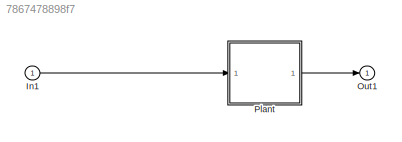
MODEL slx_7867478898f7
KIND model
CONFIG AbsTol = auto
CONFIG EnableMultiTasking = on
CONFIG FixedStep = auto
CONFIG MaxStep = 0.1
CONFIG MinStep = auto
CONFIG RelTol = 1e-3
CONFIG SampleTimeConstraint = Unconstrained
CONFIG Solver = FixedStepAuto
CONFIG SolverName = FixedStepAuto
CONFIG StartTime = 0.0
CONFIG StopTime = simstop
BLOCK [Inport] In1
  IconDisplay = Port number
BLOCK [Outport] Out1
  IconDisplay = Port number
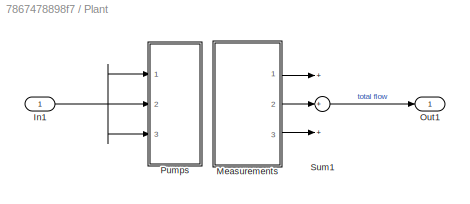
BLOCK [SubSystem] Plant
  Ports = [1, 1]
  RequestExecContextInheritance = off
  Variant = off
BLOCK [Inport] Plant/In1
  IconDisplay = Port number
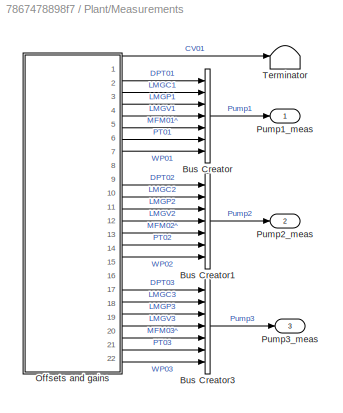
BLOCK [SubSystem] Plant/Measurements
  Ports = [0, 3]
  RequestExecContextInheritance = off
  Variant = off
BLOCK [BusCreator] Plant/Measurements/Bus Creator
  DisplayOption = bar
  InheritFromInputs = on
  Inputs = 7
  Ports = [7, 1]
BLOCK [BusCreator] Plant/Measurements/Bus Creator1
  DisplayOption = bar
  InheritFromInputs = on
  Inputs = 7
  Ports = [7, 1]
BLOCK [BusCreator] Plant/Measurements/Bus Creator3
  DisplayOption = bar
  InheritFromInputs = on
  Inputs = 7
  Ports = [7, 1]
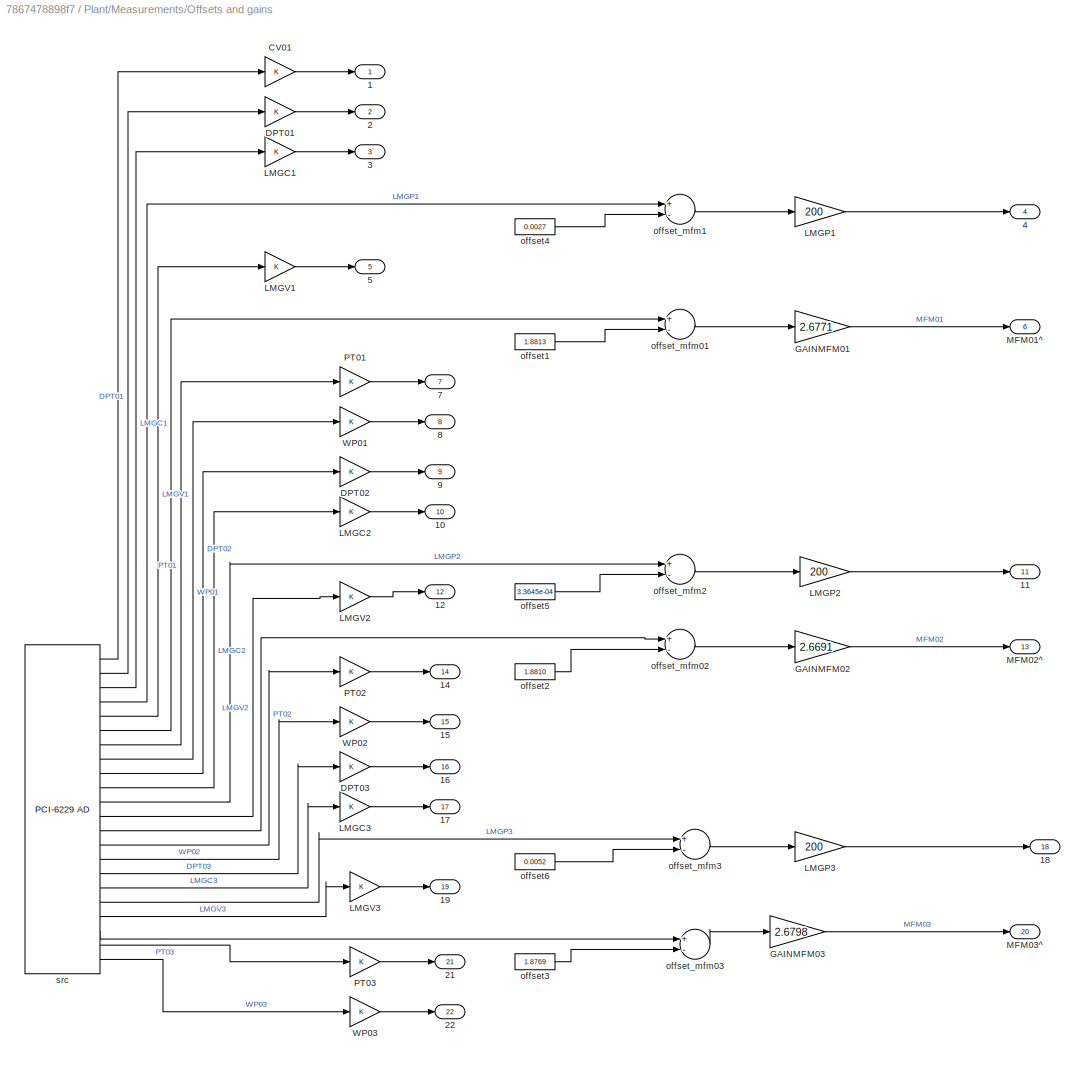
BLOCK [SubSystem] Plant/Measurements/Offsets and gains
  Ports = [0, 22]
  RequestExecContextInheritance = off
  Variant = off
BLOCK [Outport] Plant/Measurements/Offsets and gains/1
  IconDisplay = Port number
BLOCK [Outport] Plant/Measurements/Offsets and gains/10
  IconDisplay = Port number
  Port = 10
BLOCK [Outport] Plant/Measurements/Offsets and gains/11
  IconDisplay = Port number
  Port = 11
BLOCK [Outport] Plant/Measurements/Offsets and gains/12
  IconDisplay = Port number
  Port = 12
BLOCK [Outport] Plant/Measurements/Offsets and gains/14
  IconDisplay = Port number
  Port = 14
BLOCK [Outport] Plant/Measurements/Offsets and gains/15
  IconDisplay = Port number
  Port = 15
BLOCK [Outport] Plant/Measurements/Offsets and gains/16
  IconDisplay = Port number
  Port = 16
BLOCK [Outport] Plant/Measurements/Offsets and gains/17
  IconDisplay = Port number
  Port = 17
BLOCK [Outport] Plant/Measurements/Offsets and gains/18
  IconDisplay = Port number
  Port = 18
BLOCK [Outport] Plant/Measurements/Offsets and gains/19
  IconDisplay = Port number
  Port = 19
BLOCK [Outport] Plant/Measurements/Offsets and gains/2
  IconDisplay = Port number
  Port = 2
BLOCK [Outport] Plant/Measurements/Offsets and gains/21
  IconDisplay = Port number
  Port = 21
BLOCK [Outport] Plant/Measurements/Offsets and gains/22
  IconDisplay = Port number
  Port = 22
BLOCK [Outport] Plant/Measurements/Offsets and gains/3
  IconDisplay = Port number
  Port = 3
BLOCK [Outport] Plant/Measurements/Offsets and gains/4
  IconDisplay = Port number
  Port = 4
BLOCK [Outport] Plant/Measurements/Offsets and gains/5
  IconDisplay = Port number
  Port = 5
BLOCK [Outport] Plant/Measurements/Offsets and gains/7
  IconDisplay = Port number
  Port = 7
BLOCK [Outport] Plant/Measurements/Offsets and gains/8
  IconDisplay = Port number
  Port = 8
BLOCK [Outport] Plant/Measurements/Offsets and gains/9
  IconDisplay = Port number
  Port = 9
BLOCK [Gain] Plant/Measurements/Offsets and gains/CV01
  OutDataTypeStr = Inherit: Inherit via internal rule
  ParamDataTypeStr = Inherit: Inherit via internal rule
  SaturateOnIntegerOverflow = off
BLOCK [Gain] Plant/Measurements/Offsets and gains/DPT01
  OutDataTypeStr = Inherit: Inherit via internal rule
  ParamDataTypeStr = Inherit: Inherit via internal rule
  SaturateOnIntegerOverflow = off
BLOCK [Gain] Plant/Measurements/Offsets and gains/DPT02
  OutDataTypeStr = Inherit: Inherit via internal rule
  ParamDataTypeStr = Inherit: Inherit via internal rule
  SaturateOnIntegerOverflow = off
BLOCK [Gain] Plant/Measurements/Offsets and gains/DPT03
  OutDataTypeStr = Inherit: Inherit via internal rule
  ParamDataTypeStr = Inherit: Inherit via internal rule
  SaturateOnIntegerOverflow = off
BLOCK [Gain] Plant/Measurements/Offsets and gains/GAINMFM01
  Gain = 2.6771
  OutDataTypeStr = Inherit: Inherit via internal rule
  ParamDataTypeStr = Inherit: Inherit via internal rule
  SaturateOnIntegerOverflow = off
BLOCK [Gain] Plant/Measurements/Offsets and gains/GAINMFM02
  Gain = 2.6691
  OutDataTypeStr = Inherit: Inherit via internal rule
  ParamDataTypeStr = Inherit: Inherit via internal rule
  SaturateOnIntegerOverflow = off
BLOCK [Gain] Plant/Measurements/Offsets and gains/GAINMFM03
  Gain = 2.6798
  OutDataTypeStr = Inherit: Inherit via internal rule
  ParamDataTypeStr = Inherit: Inherit via internal rule
  SaturateOnIntegerOverflow = off
BLOCK [Gain] Plant/Measurements/Offsets and gains/LMGC1
  OutDataTypeStr = Inherit: Inherit via internal rule
  ParamDataTypeStr = Inherit: Inherit via internal rule
  SaturateOnIntegerOverflow = off
BLOCK [Gain] Plant/Measurements/Offsets and gains/LMGC2
  OutDataTypeStr = Inherit: Inherit via internal rule
  ParamDataTypeStr = Inherit: Inherit via internal rule
  SaturateOnIntegerOverflow = off
BLOCK [Gain] Plant/Measurements/Offsets and gains/LMGC3
  OutDataTypeStr = Inherit: Inherit via internal rule
  ParamDataTypeStr = Inherit: Inherit via internal rule
  SaturateOnIntegerOverflow = off
BLOCK [Gain] Plant/Measurements/Offsets and gains/LMGP1
  Gain = 200
  OutDataTypeStr = Inherit: Inherit via internal rule
  ParamDataTypeStr = Inherit: Inherit via internal rule
  SaturateOnIntegerOverflow = off
BLOCK [Gain] Plant/Measurements/Offsets and gains/LMGP2
  Gain = 200
  OutDataTypeStr = Inherit: Inherit via internal rule
  ParamDataTypeStr = Inherit: Inherit via internal rule
  SaturateOnIntegerOverflow = off
BLOCK [Gain] Plant/Measurements/Offsets and gains/LMGP3
  Gain = 200
  OutDataTypeStr = Inherit: Inherit via internal rule
  ParamDataTypeStr = Inherit: Inherit via internal rule
  SaturateOnIntegerOverflow = off
BLOCK [Gain] Plant/Measurements/Offsets and gains/LMGV1
  OutDataTypeStr = Inherit: Inherit via internal rule
  ParamDataTypeStr = Inherit: Inherit via internal rule
  SaturateOnIntegerOverflow = off
BLOCK [Gain] Plant/Measurements/Offsets and gains/LMGV2
  OutDataTypeStr = Inherit: Inherit via internal rule
  ParamDataTypeStr = Inherit: Inherit via internal rule
  SaturateOnIntegerOverflow = off
BLOCK [Gain] Plant/Measurements/Offsets and gains/LMGV3
  OutDataTypeStr = Inherit: Inherit via internal rule
  ParamDataTypeStr = Inherit: Inherit via internal rule
  SaturateOnIntegerOverflow = off
BLOCK [Outport] Plant/Measurements/Offsets and gains/MFM01^
  IconDisplay = Port number
  Port = 6
BLOCK [Outport] Plant/Measurements/Offsets and gains/MFM02^
  IconDisplay = Port number
  Port = 13
BLOCK [Outport] Plant/Measurements/Offsets and gains/MFM03^
  IconDisplay = Port number
  Port = 20
BLOCK [Gain] Plant/Measurements/Offsets and gains/PT01
  OutDataTypeStr = Inherit: Inherit via internal rule
  ParamDataTypeStr = Inherit: Inherit via internal rule
  SaturateOnIntegerOverflow = off
BLOCK [Gain] Plant/Measurements/Offsets and gains/PT02
  OutDataTypeStr = Inherit: Inherit via internal rule
  ParamDataTypeStr = Inherit: Inherit via internal rule
  SaturateOnIntegerOverflow = off
BLOCK [Gain] Plant/Measurements/Offsets and gains/PT03
  OutDataTypeStr = Inherit: Inherit via internal rule
  ParamDataTypeStr = Inherit: Inherit via internal rule
  SaturateOnIntegerOverflow = off
BLOCK [Gain] Plant/Measurements/Offsets and gains/WP01
  OutDataTypeStr = Inherit: Inherit via internal rule
  ParamDataTypeStr = Inherit: Inherit via internal rule
  SaturateOnIntegerOverflow = off
BLOCK [Gain] Plant/Measurements/Offsets and gains/WP02
  OutDataTypeStr = Inherit: Inherit via internal rule
  ParamDataTypeStr = Inherit: Inherit via internal rule
  SaturateOnIntegerOverflow = off
BLOCK [Gain] Plant/Measurements/Offsets and gains/WP03
  OutDataTypeStr = Inherit: Inherit via internal rule
  ParamDataTypeStr = Inherit: Inherit via internal rule
  SaturateOnIntegerOverflow = off
BLOCK [Constant] Plant/Measurements/Offsets and gains/offset1
  Value = 1.8813
BLOCK [Constant] Plant/Measurements/Offsets and gains/offset2
  Value = 1.8810
BLOCK [Constant] Plant/Measurements/Offsets and gains/offset3
  Value = 1.8769
BLOCK [Constant] Plant/Measurements/Offsets and gains/offset4
  Value = 0.0027
BLOCK [Constant] Plant/Measurements/Offsets and gains/offset5
  Value = 3.3645e-04
BLOCK [Constant] Plant/Measurements/Offsets and gains/offset6
  Value = 0.0052
BLOCK [Sum] Plant/Measurements/Offsets and gains/offset_mfm01
  InputSameDT = off
  Inputs = +-
  OutDataTypeStr = Inherit: Inherit via internal rule
  Ports = [2, 1]
  SaturateOnIntegerOverflow = off
BLOCK [Sum] Plant/Measurements/Offsets and gains/offset_mfm02
  InputSameDT = off
  Inputs = +-
  OutDataTypeStr = Inherit: Inherit via internal rule
  Ports = [2, 1]
  SaturateOnIntegerOverflow = off
BLOCK [Sum] Plant/Measurements/Offsets and gains/offset_mfm03
  InputSameDT = off
  Inputs = +-
  OutDataTypeStr = Inherit: Inherit via internal rule
  Ports = [2, 1]
  SaturateOnIntegerOverflow = off
BLOCK [Sum] Plant/Measurements/Offsets and gains/offset_mfm1
  InputSameDT = off
  Inputs = +-
  OutDataTypeStr = Inherit: Inherit via internal rule
  Ports = [2, 1]
  SaturateOnIntegerOverflow = off
BLOCK [Sum] Plant/Measurements/Offsets and gains/offset_mfm2
  InputSameDT = off
  Inputs = +-
  OutDataTypeStr = Inherit: Inherit via internal rule
  Ports = [2, 1]
  SaturateOnIntegerOverflow = off
BLOCK [Sum] Plant/Measurements/Offsets and gains/offset_mfm3
  InputSameDT = off
  Inputs = +-
  OutDataTypeStr = Inherit: Inherit via internal rule
  Ports = [2, 1]
  SaturateOnIntegerOverflow = off
BLOCK [Reference] Plant/Measurements/Offsets and gains/src  REF=xpcnilib/A//D/M Series/PCI-6229 AD
  Ports = [0, 22]
  SourceBlock = xpcnilib/A//D/M Series/PCI-6229 AD
  SourceType = adnipci6229
BLOCK [Outport] Plant/Measurements/Pump1_meas
  IconDisplay = Port number
BLOCK [Outport] Plant/Measurements/Pump2_meas
  IconDisplay = Port number
  Port = 2
BLOCK [Outport] Plant/Measurements/Pump3_meas
  IconDisplay = Port number
  Port = 3
BLOCK [Terminator] Plant/Measurements/Terminator
BLOCK [Outport] Plant/Out1
  IconDisplay = Port number
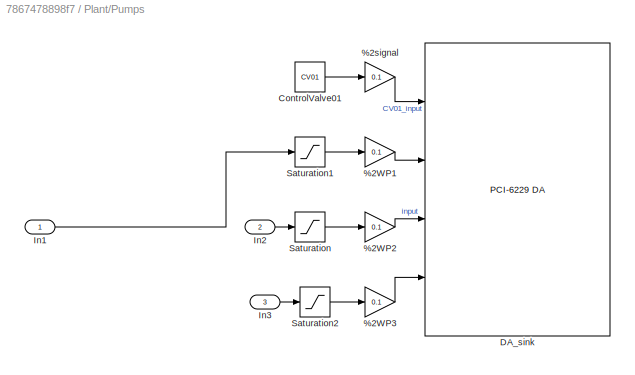
BLOCK [SubSystem] Plant/Pumps
  Ports = [3]
  RequestExecContextInheritance = off
  Variant = off
BLOCK [Gain] Plant/Pumps/%2WP1
  Gain = 0.1
  OutDataTypeStr = Inherit: Inherit via internal rule
  ParamDataTypeStr = Inherit: Inherit via internal rule
  SaturateOnIntegerOverflow = off
BLOCK [Gain] Plant/Pumps/%2WP2
  Gain = 0.1
  OutDataTypeStr = Inherit: Inherit via internal rule
  ParamDataTypeStr = Inherit: Inherit via internal rule
  SaturateOnIntegerOverflow = off
BLOCK [Gain] Plant/Pumps/%2WP3
  Gain = 0.1
  OutDataTypeStr = Inherit: Inherit via internal rule
  ParamDataTypeStr = Inherit: Inherit via internal rule
  SaturateOnIntegerOverflow = off
BLOCK [Gain] Plant/Pumps/%2signal
  Gain = 0.1
  OutDataTypeStr = Inherit: Inherit via internal rule
  ParamDataTypeStr = Inherit: Inherit via internal rule
  SaturateOnIntegerOverflow = off
BLOCK [Constant] Plant/Pumps/ControlValve01
  Value = CV01
BLOCK [Reference] Plant/Pumps/DA_sink  REF=xpcnilib/D//A/M Series/PCI-6229 DA
  Ports = [4]
  SourceBlock = xpcnilib/D//A/M Series/PCI-6229 DA
  SourceType = danipci6229
BLOCK [Inport] Plant/Pumps/In1
  IconDisplay = Port number
BLOCK [Inport] Plant/Pumps/In2
  IconDisplay = Port number
  Port = 2
BLOCK [Inport] Plant/Pumps/In3
  IconDisplay = Port number
  Port = 3
BLOCK [Saturate] Plant/Pumps/Saturation
  InputPortMap = u0
  LowerLimit = 0
  Ports = [1, 1]
  UpperLimit = 80
BLOCK [Saturate] Plant/Pumps/Saturation1
  InputPortMap = u0
  LowerLimit = 0
  Ports = [1, 1]
  UpperLimit = 80
BLOCK [Saturate] Plant/Pumps/Saturation2
  InputPortMap = u0
  LowerLimit = 0
  Ports = [1, 1]
  UpperLimit = 80
BLOCK [Sum] Plant/Sum1
  InputSameDT = off
  Inputs = +++
  OutDataTypeStr = Inherit: Inherit via internal rule
  Ports = [3, 1]
  SaturateOnIntegerOverflow = off
LINE In1:1 -> Plant:1
NET Plant/In1:1 -> Plant/Pumps:1, Plant/Pumps:2, Plant/Pumps:3
LINE Plant/Measurements/Bus Creator1:1 -> Plant/Measurements/Pump2_meas:1
LINE Plant/Measurements/Bus Creator3:1 -> Plant/Measurements/Pump3_meas:1
LINE Plant/Measurements/Bus Creator:1 -> Plant/Measurements/Pump1_meas:1
LINE Plant/Measurements/Offsets and gains/CV01:1 -> Plant/Measurements/Offsets and gains/1:1
LINE Plant/Measurements/Offsets and gains/DPT01:1 -> Plant/Measurements/Offsets and gains/2:1
LINE Plant/Measurements/Offsets and gains/DPT02:1 -> Plant/Measurements/Offsets and gains/9:1
LINE Plant/Measurements/Offsets and gains/DPT03:1 -> Plant/Measurements/Offsets and gains/16:1
LINE Plant/Measurements/Offsets and gains/GAINMFM01:1 -> Plant/Measurements/Offsets and gains/MFM01^:1
LINE Plant/Measurements/Offsets and gains/GAINMFM02:1 -> Plant/Measurements/Offsets and gains/MFM02^:1
LINE Plant/Measurements/Offsets and gains/GAINMFM03:1 -> Plant/Measurements/Offsets and gains/MFM03^:1
LINE Plant/Measurements/Offsets and gains/LMGC1:1 -> Plant/Measurements/Offsets and gains/3:1
LINE Plant/Measurements/Offsets and gains/LMGC2:1 -> Plant/Measurements/Offsets and gains/10:1
LINE Plant/Measurements/Offsets and gains/LMGC3:1 -> Plant/Measurements/Offsets and gains/17:1
LINE Plant/Measurements/Offsets and gains/LMGP1:1 -> Plant/Measurements/Offsets and gains/4:1
LINE Plant/Measurements/Offsets and gains/LMGP2:1 -> Plant/Measurements/Offsets and gains/11:1
LINE Plant/Measurements/Offsets and gains/LMGP3:1 -> Plant/Measurements/Offsets and gains/18:1
LINE Plant/Measurements/Offsets and gains/LMGV1:1 -> Plant/Measurements/Offsets and gains/5:1
LINE Plant/Measurements/Offsets and gains/LMGV2:1 -> Plant/Measurements/Offsets and gains/12:1
LINE Plant/Measurements/Offsets and gains/LMGV3:1 -> Plant/Measurements/Offsets and gains/19:1
LINE Plant/Measurements/Offsets and gains/PT01:1 -> Plant/Measurements/Offsets and gains/7:1
LINE Plant/Measurements/Offsets and gains/PT02:1 -> Plant/Measurements/Offsets and gains/14:1
LINE Plant/Measurements/Offsets and gains/PT03:1 -> Plant/Measurements/Offsets and gains/21:1
LINE Plant/Measurements/Offsets and gains/WP01:1 -> Plant/Measurements/Offsets and gains/8:1
LINE Plant/Measurements/Offsets and gains/WP02:1 -> Plant/Measurements/Offsets and gains/15:1
LINE Plant/Measurements/Offsets and gains/WP03:1 -> Plant/Measurements/Offsets and gains/22:1
LINE Plant/Measurements/Offsets and gains/offset1:1 -> Plant/Measurements/Offsets and gains/offset_mfm01:2
LINE Plant/Measurements/Offsets and gains/offset2:1 -> Plant/Measurements/Offsets and gains/offset_mfm02:2
LINE Plant/Measurements/Offsets and gains/offset3:1 -> Plant/Measurements/Offsets and gains/offset_mfm03:2
LINE Plant/Measurements/Offsets and gains/offset4:1 -> Plant/Measurements/Offsets and gains/offset_mfm1:2
LINE Plant/Measurements/Offsets and gains/offset5:1 -> Plant/Measurements/Offsets and gains/offset_mfm2:2
LINE Plant/Measurements/Offsets and gains/offset6:1 -> Plant/Measurements/Offsets and gains/offset_mfm3:2
LINE Plant/Measurements/Offsets and gains/offset_mfm01:1 -> Plant/Measurements/Offsets and gains/GAINMFM01:1
LINE Plant/Measurements/Offsets and gains/offset_mfm02:1 -> Plant/Measurements/Offsets and gains/GAINMFM02:1
LINE Plant/Measurements/Offsets and gains/offset_mfm03:1 -> Plant/Measurements/Offsets and gains/GAINMFM03:1
LINE Plant/Measurements/Offsets and gains/offset_mfm1:1 -> Plant/Measurements/Offsets and gains/LMGP1:1
LINE Plant/Measurements/Offsets and gains/offset_mfm2:1 -> Plant/Measurements/Offsets and gains/LMGP2:1
LINE Plant/Measurements/Offsets and gains/offset_mfm3:1 -> Plant/Measurements/Offsets and gains/LMGP3:1
LINE Plant/Measurements/Offsets and gains/src:1 -> Plant/Measurements/Offsets and gains/CV01:1
LINE Plant/Measurements/Offsets and gains/src:10 -> Plant/Measurements/Offsets and gains/LMGC2:1
LINE Plant/Measurements/Offsets and gains/src:11 -> Plant/Measurements/Offsets and gains/offset_mfm2:1
LINE Plant/Measurements/Offsets and gains/src:12 -> Plant/Measurements/Offsets and gains/LMGV2:1
LINE Plant/Measurements/Offsets and gains/src:13 -> Plant/Measurements/Offsets and gains/offset_mfm02:1
LINE Plant/Measurements/Offsets and gains/src:14 -> Plant/Measurements/Offsets and gains/PT02:1
LINE Plant/Measurements/Offsets and gains/src:15 -> Plant/Measurements/Offsets and gains/WP02:1
LINE Plant/Measurements/Offsets and gains/src:16 -> Plant/Measurements/Offsets and gains/DPT03:1
LINE Plant/Measurements/Offsets and gains/src:17 -> Plant/Measurements/Offsets and gains/LMGC3:1
LINE Plant/Measurements/Offsets and gains/src:18 -> Plant/Measurements/Offsets and gains/offset_mfm3:1
LINE Plant/Measurements/Offsets and gains/src:19 -> Plant/Measurements/Offsets and gains/LMGV3:1
LINE Plant/Measurements/Offsets and gains/src:2 -> Plant/Measurements/Offsets and gains/DPT01:1
LINE Plant/Measurements/Offsets and gains/src:20 -> Plant/Measurements/Offsets and gains/offset_mfm03:1
LINE Plant/Measurements/Offsets and gains/src:21 -> Plant/Measurements/Offsets and gains/PT03:1
LINE Plant/Measurements/Offsets and gains/src:22 -> Plant/Measurements/Offsets and gains/WP03:1
LINE Plant/Measurements/Offsets and gains/src:3 -> Plant/Measurements/Offsets and gains/LMGC1:1
LINE Plant/Measurements/Offsets and gains/src:4 -> Plant/Measurements/Offsets and gains/offset_mfm1:1
LINE Plant/Measurements/Offsets and gains/src:5 -> Plant/Measurements/Offsets and gains/LMGV1:1
LINE Plant/Measurements/Offsets and gains/src:6 -> Plant/Measurements/Offsets and gains/offset_mfm01:1
LINE Plant/Measurements/Offsets and gains/src:7 -> Plant/Measurements/Offsets and gains/PT01:1
LINE Plant/Measurements/Offsets and gains/src:8 -> Plant/Measurements/Offsets and gains/WP01:1
LINE Plant/Measurements/Offsets and gains/src:9 -> Plant/Measurements/Offsets and gains/DPT02:1
LINE Plant/Measurements/Offsets and gains:1 -> Plant/Measurements/Terminator:1
LINE Plant/Measurements/Offsets and gains:10 -> Plant/Measurements/Bus Creator1:2
LINE Plant/Measurements/Offsets and gains:11 -> Plant/Measurements/Bus Creator1:3
LINE Plant/Measurements/Offsets and gains:12 -> Plant/Measurements/Bus Creator1:4
LINE Plant/Measurements/Offsets and gains:13 -> Plant/Measurements/Bus Creator1:5
LINE Plant/Measurements/Offsets and gains:14 -> Plant/Measurements/Bus Creator1:6
LINE Plant/Measurements/Offsets and gains:15 -> Plant/Measurements/Bus Creator1:7
LINE Plant/Measurements/Offsets and gains:16 -> Plant/Measurements/Bus Creator3:1
LINE Plant/Measurements/Offsets and gains:17 -> Plant/Measurements/Bus Creator3:2
LINE Plant/Measurements/Offsets and gains:18 -> Plant/Measurements/Bus Creator3:3
LINE Plant/Measurements/Offsets and gains:19 -> Plant/Measurements/Bus Creator3:4
LINE Plant/Measurements/Offsets and gains:2 -> Plant/Measurements/Bus Creator:1
LINE Plant/Measurements/Offsets and gains:20 -> Plant/Measurements/Bus Creator3:5
LINE Plant/Measurements/Offsets and gains:21 -> Plant/Measurements/Bus Creator3:6
LINE Plant/Measurements/Offsets and gains:22 -> Plant/Measurements/Bus Creator3:7
LINE Plant/Measurements/Offsets and gains:3 -> Plant/Measurements/Bus Creator:2
LINE Plant/Measurements/Offsets and gains:4 -> Plant/Measurements/Bus Creator:3
LINE Plant/Measurements/Offsets and gains:5 -> Plant/Measurements/Bus Creator:4
LINE Plant/Measurements/Offsets and gains:6 -> Plant/Measurements/Bus Creator:5
LINE Plant/Measurements/Offsets and gains:7 -> Plant/Measurements/Bus Creator:6
LINE Plant/Measurements/Offsets and gains:8 -> Plant/Measurements/Bus Creator:7
LINE Plant/Measurements/Offsets and gains:9 -> Plant/Measurements/Bus Creator1:1
LINE Plant/Measurements:1 -> Plant/Sum1:1
LINE Plant/Measurements:2 -> Plant/Sum1:2
LINE Plant/Measurements:3 -> Plant/Sum1:3
LINE Plant/Pumps/%2WP1:1 -> Plant/Pumps/DA_sink:2
LINE Plant/Pumps/%2WP2:1 -> Plant/Pumps/DA_sink:3
LINE Plant/Pumps/%2WP3:1 -> Plant/Pumps/DA_sink:4
LINE Plant/Pumps/%2signal:1 -> Plant/Pumps/DA_sink:1
LINE Plant/Pumps/ControlValve01:1 -> Plant/Pumps/%2signal:1
LINE Plant/Pumps/In1:1 -> Plant/Pumps/Saturation1:1
LINE Plant/Pumps/In2:1 -> Plant/Pumps/Saturation:1
LINE Plant/Pumps/In3:1 -> Plant/Pumps/Saturation2:1
LINE Plant/Pumps/Saturation1:1 -> Plant/Pumps/%2WP1:1
LINE Plant/Pumps/Saturation2:1 -> Plant/Pumps/%2WP3:1
LINE Plant/Pumps/Saturation:1 -> Plant/Pumps/%2WP2:1
LINE Plant/Sum1:1 -> Plant/Out1:1
LINE Plant:1 -> Out1:1
note: NET lines group one-source signal fan-out (src -> all destinations, sorted); 1:1 wires keep LINE
